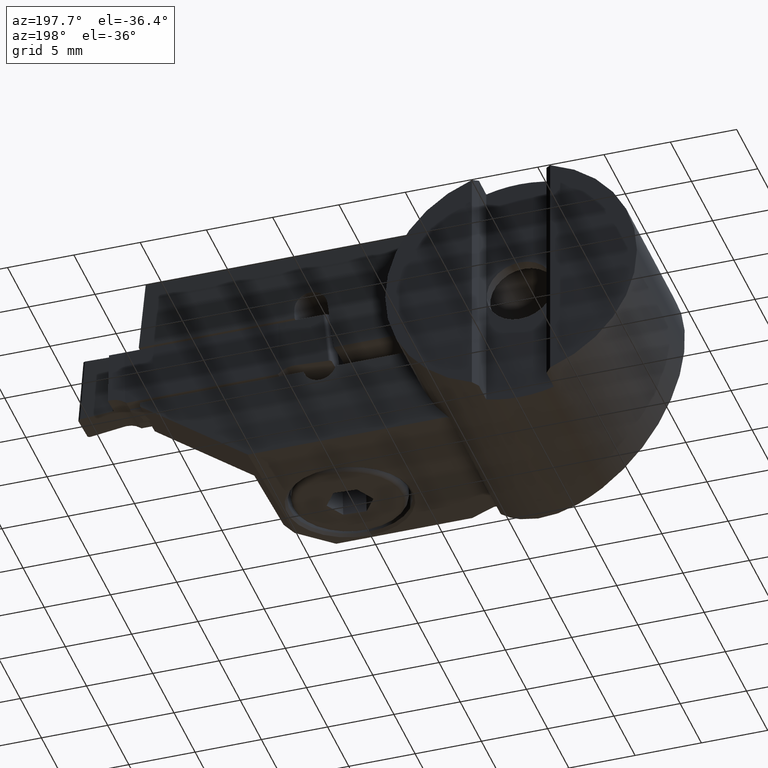
[diagram: clean part render]
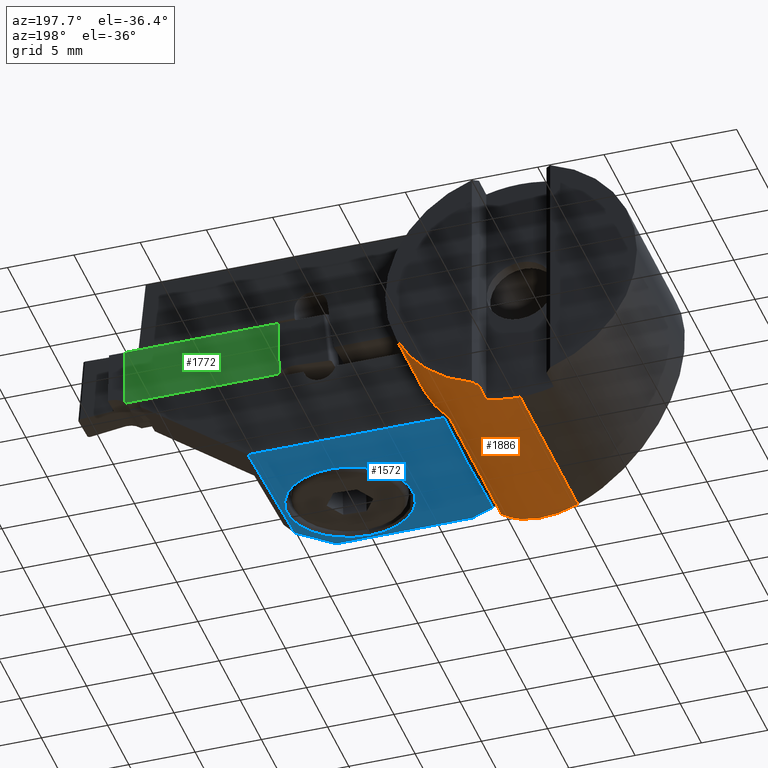
[diagram: same view with three faces highlighted in distinct colors, each labeled with its STEP entity id]
A machine part, auxiliary view with three faces highlighted in distinct colors.
Their STEP definitions:

[orange] entity #1886 — the highlighted cylindrical surface (partial cylindrical patch) has radius 9.5 mm, axis along (-0, 1, -0).
#774=EDGE_CURVE('NONE',#1198,#1756,#2194,.F.);
#866=VERTEX_POINT('NONE',#2297);
#902=EDGE_CURVE('NONE',#1232,#1576,#2335,.T.);
#1032=VERTEX_POINT('NONE',#2474);
#1058=EDGE_CURVE('NONE',#1576,#1346,#2501,.F.);
#1162=EDGE_CURVE('NONE',#1776,#1630,#2618,.F.);
#1186=EDGE_CURVE('NONE',#1912,#1732,#2642,.T.);
#1198=VERTEX_POINT('NONE',#2654);
#1232=VERTEX_POINT('NONE',#2695);
#1234=EDGE_CURVE('NONE',#1626,#1032,#2697,.F.);
#1322=EDGE_CURVE('NONE',#1346,#866,#2795,.F.);
#1332=EDGE_CURVE('NONE',#1732,#1566,#2805,.T.);
#1346=VERTEX_POINT('NONE',#2820);
#1480=EDGE_CURVE('NONE',#1566,#1232,#2966,.F.);
#1566=VERTEX_POINT('NONE',#3060);
#1576=VERTEX_POINT('NONE',#3074);
#1578=EDGE_CURVE('NONE',#866,#1198,#3076,.F.);
#1626=VERTEX_POINT('NONE',#3127);
#1630=VERTEX_POINT('NONE',#3131);
#1732=VERTEX_POINT('NONE',#3246);
#1756=VERTEX_POINT('NONE',#3272);
#1776=VERTEX_POINT('NONE',#3294);
#1844=EDGE_CURVE('NONE',#1756,#1776,#3370,.F.);
#1886=ADVANCED_FACE('NONE',(#3416),#3417,.T.);
#1912=VERTEX_POINT('NONE',#3447);
#1938=EDGE_CURVE('NONE',#1032,#1958,#3474,.T.);
#1954=EDGE_CURVE('NONE',#1630,#1958,#3494,.F.);
#1958=VERTEX_POINT('NONE',#3498);
#2100=EDGE_CURVE('NONE',#1912,#1626,#3655,.F.);
#2194=CIRCLE('',#3803,9.5);
#2297=CARTESIAN_POINT('',(2.55,-0.399999999999999,-9.15136601825104));
#2335=LINE('',#4069,#4070);
#2474=CARTESIAN_POINT('',(0.0,-5.61117100890395,9.5));
#2501=CIRCLE('',#4323,9.5);
#2618=LINE('',#4545,#4546);
#2642=B_SPLINE_CURVE_WITH_KNOTS('',3,(#4594,#4595,#4596,#4597),.UNSPECIFIED.,.F.,.F.,(4,4),(0.000131653308818553,0.000150416080858833),.UNSPECIFIED.);
#2654=CARTESIAN_POINT('',(2.95,0.0,-9.03036544111034));
#2695=CARTESIAN_POINT('',(1.16337603613126E-015,-15.7900772475275,-9.5));
#2697=ELLIPSE('',#4703,9.52319803177113,9.5);
#2795=LINE('',#4878,#4879);
#2805=LINE('',#4892,#4893);
#2820=CARTESIAN_POINT('',(2.55,-2.15,-9.15136601825104));
#2966=ELLIPSE('',#5210,10.4820902301437,9.5);
#3060=CARTESIAN_POINT('',(6.754823672766,-18.939903255625,-6.67999679265193));
#3074=CARTESIAN_POINT('',(1.16337603613126E-015,-2.15,-9.5));
#3076=ELLIPSE('',#5448,13.4350288425444,9.5);
#3127=CARTESIAN_POINT('',(9.5,-6.27547572236723,0.0));
#3131=CARTESIAN_POINT('',(2.55,-2.15,9.15136601825105));
#3246=CARTESIAN_POINT('',(6.754823672766,-6.72390522656279,-6.67999679265193));
#3272=CARTESIAN_POINT('',(2.95,0.0,9.03036544111034));
#3294=CARTESIAN_POINT('',(2.55,-0.399999999999999,9.15136601825105));
#3370=ELLIPSE('',#6024,13.4350288425444,9.5);
#3416=FACE_OUTER_BOUND('',#6107,.T.);
#3417=CYLINDRICAL_SURFACE('',#6108,9.5);
#3447=CARTESIAN_POINT('',(6.75686343687371,-6.74244232587475,-6.67793354979213));
#3474=LINE('',#6247,#6248);
#3494=CIRCLE('',#6272,9.5);
#3498=CARTESIAN_POINT('',(0.0,-2.15,9.5));
#3655=ELLIPSE('',#6520,9.52319803177113,9.5);
#3803=AXIS2_PLACEMENT_3D('',#6598,#6599,#6600);
#4069=CARTESIAN_POINT('',(1.16337603613126E-015,-20.22,-9.5));
#4070=VECTOR('',#6749,1000.0);
#4323=AXIS2_PLACEMENT_3D('',#6890,#6891,#6892);
#4545=CARTESIAN_POINT('',(2.55,-20.22,9.15136601825105));
#4546=VECTOR('',#7038,1.0);
#4594=CARTESIAN_POINT('',(6.75686343687371,-6.74244232587475,-6.67793354979213));
#4595=CARTESIAN_POINT('',(6.75618057639941,-6.73626396890599,-6.67862448039943));
#4596=CARTESIAN_POINT('',(6.75550217684964,-6.73008459773371,-6.67931068821379));
#4597=CARTESIAN_POINT('',(6.754823672766,-6.72390522656279,-6.67999679265193));
#4703=AXIS2_PLACEMENT_3D('',#7112,#7113,#7114);
#4878=CARTESIAN_POINT('',(2.55,-20.22,-9.15136601825105));
#4879=VECTOR('',#7219,1.0);
#4892=CARTESIAN_POINT('',(6.75482367276599,-20.22,-6.67999679265193));
#4893=VECTOR('',#7226,1.0);
#5210=AXIS2_PLACEMENT_3D('',#7390,#7391,#7392);
#5448=AXIS2_PLACEMENT_3D('',#7516,#7517,#7518);
#6024=AXIS2_PLACEMENT_3D('',#7824,#7825,#7826);
#6107=EDGE_LOOP('',(#7870,#7871,#7872,#7873,#7874,#7875,#7876,#7877,#7878,#7879,#7880,#7881,#7882,#7883));
#6108=AXIS2_PLACEMENT_3D('',#7884,#7885,#7886);
#6247=CARTESIAN_POINT('',(0.0,-20.22,9.5));
#6248=VECTOR('',#7944,1000.0);
#6272=AXIS2_PLACEMENT_3D('',#7983,#7984,#7985);
#6520=AXIS2_PLACEMENT_3D('',#8149,#8150,#8151);
#6598=CARTESIAN_POINT('',(0.0,0.0,0.0));
#6599=DIRECTION('',(-0.0,1.0,0.0));
#6600=DIRECTION('',(0.0,0.0,1.0));
#6749=DIRECTION('',(0.0,1.0,0.0));
#6890=CARTESIAN_POINT('',(0.0,-2.15,0.0));
#6891=DIRECTION('',(-0.0,1.0,0.0));
#6892=DIRECTION('',(0.0,0.0,1.0));
#7038=DIRECTION('',(0.0,1.0,0.0));
#7112=CARTESIAN_POINT('',(0.0,-6.27547572236723,0.0));
#7113=DIRECTION('',(0.0,0.997564050259825,-0.0697564737441181));
#7114=DIRECTION('',(0.0,0.0697564737441181,0.997564050259825));
#7219=DIRECTION('',(0.0,-1.0,0.0));
#7226=DIRECTION('',(0.0,-1.0,0.0));
#7390=CARTESIAN_POINT('',(0.0,-15.7900772475275,0.0));
#7391=DIRECTION('',(-0.422618261740701,-0.906307787036649,0.0));
#7392=DIRECTION('',(-0.906307787036649,0.422618261740701,-0.0));
#7516=CARTESIAN_POINT('',(0.0,-2.94999999999999,0.0));
#7517=DIRECTION('',(-0.707106781186546,0.707106781186549,0.0));
#7518=DIRECTION('',(-0.707106781186549,-0.707106781186546,0.0));
#7824=CARTESIAN_POINT('',(0.0,-2.94999999999999,0.0));
#7825=DIRECTION('',(-0.707106781186546,0.707106781186549,0.0));
#7826=DIRECTION('',(-0.707106781186549,-0.707106781186546,0.0));
#7870=ORIENTED_EDGE('',*,*,#1480,.T.);
#7871=ORIENTED_EDGE('',*,*,#902,.T.);
#7872=ORIENTED_EDGE('',*,*,#1058,.T.);
#7873=ORIENTED_EDGE('',*,*,#1322,.T.);
#7874=ORIENTED_EDGE('',*,*,#1578,.T.);
#7875=ORIENTED_EDGE('',*,*,#774,.T.);
#7876=ORIENTED_EDGE('',*,*,#1844,.T.);
#7877=ORIENTED_EDGE('',*,*,#1162,.T.);
#7878=ORIENTED_EDGE('',*,*,#1954,.T.);
#7879=ORIENTED_EDGE('',*,*,#1938,.F.);
#7880=ORIENTED_EDGE('',*,*,#1234,.F.);
#7881=ORIENTED_EDGE('',*,*,#2100,.F.);
#7882=ORIENTED_EDGE('',*,*,#1186,.T.);
#7883=ORIENTED_EDGE('',*,*,#1332,.T.);
#7884=CARTESIAN_POINT('',(0.0,-20.22,0.0));
#7885=DIRECTION('',(-0.0,1.0,-0.0));
#7886=DIRECTION('',(0.0,0.0,1.0));
#7944=DIRECTION('',(0.0,1.0,0.0));
#7983=CARTESIAN_POINT('',(0.0,-2.15,0.0));
#7984=DIRECTION('',(-0.0,1.0,0.0));
#7985=DIRECTION('',(0.0,0.0,1.0));
#8149=CARTESIAN_POINT('',(0.0,-6.27547572236723,0.0));
#8150=DIRECTION('',(0.0,0.997564050259825,-0.0697564737441181));
#8151=DIRECTION('',(0.0,0.0697564737441181,0.997564050259825));

[blue] entity #1572 — the highlighted planar face has unit normal (0, 0.0698, 0.9976).
#744=EDGE_CURVE('NONE',#1430,#782,#2161,.F.);
#782=VERTEX_POINT('NONE',#2202);
#884=VERTEX_POINT('NONE',#2317);
#1132=VERTEX_POINT('NONE',#2586);
#1300=EDGE_CURVE('NONE',#2126,#782,#2771,.F.);
#1348=VERTEX_POINT('NONE',#2822);
#1414=EDGE_CURVE('NONE',#1132,#884,#2895,.F.);
#1430=VERTEX_POINT('NONE',#2913);
#1444=VERTEX_POINT('NONE',#2928);
#1448=EDGE_CURVE('NONE',#1444,#1348,#2932,.T.);
#1572=ADVANCED_FACE('NONE',(#3068,#3069),#3070,.F.);
#1636=EDGE_CURVE('NONE',#1444,#1818,#3138,.T.);
#1760=EDGE_CURVE('NONE',#1430,#1864,#3276,.T.);
#1784=EDGE_CURVE('NONE',#1818,#1864,#3303,.T.);
#1818=VERTEX_POINT('NONE',#3343);
#1828=EDGE_CURVE('NONE',#1348,#2126,#3353,.F.);
#1864=VERTEX_POINT('NONE',#3391);
#2118=EDGE_CURVE('NONE',#884,#1132,#3675,.T.);
#2126=VERTEX_POINT('NONE',#3684);
#2161=LINE('',#3733,#3734);
#2202=CARTESIAN_POINT('',(22.0,-6.73,-6.5));
#2317=CARTESIAN_POINT('',(17.0,-19.8978454634297,-5.57921454657765));
#2586=CARTESIAN_POINT('',(17.0,-10.5207433909874,-6.23492539977235));
#2771=LINE('',#4836,#4837);
#2822=CARTESIAN_POINT('',(7.52820323027551,-18.7487972026489,-5.65956382822328));
#2895=CIRCLE('',#5066,4.7);
#2913=CARTESIAN_POINT('',(22.0,-17.7801556840435,-5.72729784153547));
#2928=CARTESIAN_POINT('',(7.52820323027551,-19.3005360659522,-5.62098248848715));
#2932=LINE('',#5155,#5156);
#3068=FACE_OUTER_BOUND('',#5428,.T.);
#3069=FACE_BOUND('',#5429,.T.);
#3070=PLANE('',#5430);
#3138=LINE('',#5565,#5566);
#3276=LINE('',#5812,#5813);
#3303=LINE('',#5855,#5856);
#3343=CARTESIAN_POINT('',(9.35923054191773,-20.1543581236619,-5.56127743402447));
#3353=B_SPLINE_CURVE_WITH_KNOTS('',3,(#5977,#5978,#5979,#5980,#5981,#5982,#5983,#5984),.UNSPECIFIED.,.F.,.F.,(4,2,2,4),(0.270583192891111,0.325934125770964,0.38395608384731,0.5),.UNSPECIFIED.);
#3391=CARTESIAN_POINT('',(19.62,-20.1543581236619,-5.56127743402447));
#3675=CIRCLE('',#6547,4.7);
#3684=CARTESIAN_POINT('',(7.18474689009052,-6.73,-6.5));
#3733=CARTESIAN_POINT('',(22.0,-20.6818686224141,-5.52439030658));
#3734=VECTOR('',#6565,1.0);
#4836=CARTESIAN_POINT('',(6.92820323027551,-6.73,-6.5));
#4837=VECTOR('',#7196,1.0);
#5066=AXIS2_PLACEMENT_3D('',#7331,#7332,#7333);
#5155=CARTESIAN_POINT('',(7.52820323027551,-20.1543581236619,-5.56127743402447));
#5156=VECTOR('',#7366,1.0);
#5428=EDGE_LOOP('',(#7504,#7505,#7506,#7507,#7508,#7509,#7510));
#5429=EDGE_LOOP('',(#7511,#7512));
#5430=AXIS2_PLACEMENT_3D('',#7513,#7514,#7515);
#5565=CARTESIAN_POINT('',(8.74057131062959,-19.865872586324,-5.58145030794232));
#5566=VECTOR('',#7581,1.0);
#5812=CARTESIAN_POINT('',(17.9470508075689,-21.8232320959424,-5.44457839760741));
#5813=VECTOR('',#7720,1.0);
#5855=CARTESIAN_POINT('',(6.92820323027551,-20.1543581236619,-5.56127743402447));
#5856=VECTOR('',#7755,1.0);
#5977=CARTESIAN_POINT('',(7.18474689009053,-6.73000000000005,-6.5));
#5978=CARTESIAN_POINT('',(7.23206563409918,-7.41972831949615,-6.45176949751049));
#5979=CARTESIAN_POINT('',(7.27699313783951,-8.19169042879422,-6.39778864826609));
#5980=CARTESIAN_POINT('',(7.36037845263588,-9.92974549041583,-6.27625199882463));
#5981=CARTESIAN_POINT('',(7.39841648708662,-10.9038497947875,-6.20813599031947));
#5982=CARTESIAN_POINT('',(7.49273396711855,-14.0269889598411,-5.98974482525138));
#5983=CARTESIAN_POINT('',(7.5282032302786,-16.3803404933992,-5.82518245512731));
#5984=CARTESIAN_POINT('',(7.52820323027551,-18.7487972026489,-5.65956382822329));
#6547=AXIS2_PLACEMENT_3D('',#8177,#8178,#8179);
#6565=DIRECTION('',(-1.16870999026869E-015,-0.997564050259825,0.0697564737441173));
#7196=DIRECTION('',(-1.0,-0.0,0.0));
#7331=CARTESIAN_POINT('',(17.0,-15.2092944272085,-5.90706997317503));
#7332=DIRECTION('',(0.0,-0.0697564737441173,-0.997564050259825));
#7333=DIRECTION('',(0.0,0.997564050259825,-0.0697564737441173));
#7366=DIRECTION('',(0.0,0.997564050259825,-0.0697564737441153));
#7504=ORIENTED_EDGE('',*,*,#1448,.T.);
#7505=ORIENTED_EDGE('',*,*,#1828,.T.);
#7506=ORIENTED_EDGE('',*,*,#1300,.T.);
#7507=ORIENTED_EDGE('',*,*,#744,.F.);
#7508=ORIENTED_EDGE('',*,*,#1760,.T.);
#7509=ORIENTED_EDGE('',*,*,#1784,.F.);
#7510=ORIENTED_EDGE('',*,*,#1636,.F.);
#7511=ORIENTED_EDGE('',*,*,#1414,.T.);
#7512=ORIENTED_EDGE('',*,*,#2118,.T.);
#7513=CARTESIAN_POINT('',(6.92820323027551,-20.1543581236619,-5.56127743402447));
#7514=DIRECTION('',(0.0,0.0697564737441173,0.997564050259825));
#7515=DIRECTION('',(0.0,0.997564050259825,-0.0697564737441173));
#7581=DIRECTION('',(0.905912288081747,-0.422433837549238,0.0295394515168776));
#7720=DIRECTION('',(-0.707106781186548,-0.705384304606639,0.0493252756161266));
#7755=DIRECTION('',(1.0,0.0,0.0));
#8177=CARTESIAN_POINT('',(17.0,-15.2092944272085,-5.90706997317503));
#8178=DIRECTION('',(0.0,0.0697564737441173,0.997564050259825));
#8179=DIRECTION('',(0.0,0.997564050259825,-0.0697564737441173));

[green] entity #1772 — the highlighted planar face has unit normal (-0, 0.9994, -0.0349).
#786=EDGE_CURVE('NONE',#1226,#1564,#2207,.T.);
#848=EDGE_CURVE('NONE',#2094,#1564,#2276,.T.);
#918=EDGE_CURVE('NONE',#1014,#1856,#2352,.T.);
#1014=VERTEX_POINT('NONE',#2454);
#1060=EDGE_CURVE('NONE',#1014,#1210,#2503,.T.);
#1136=EDGE_CURVE('NONE',#1210,#2094,#2590,.T.);
#1176=EDGE_CURVE('NONE',#1856,#1226,#2632,.T.);
#1210=VERTEX_POINT('NONE',#2670);
#1226=VERTEX_POINT('NONE',#2687);
#1564=VERTEX_POINT('NONE',#3058);
#1772=ADVANCED_FACE('NONE',(#3289),#3290,.T.);
#1856=VERTEX_POINT('NONE',#3382);
#2094=VERTEX_POINT('NONE',#3649);
#2207=(B_SPLINE_CURVE(3,(#3831,#3832,#3833,#3834),.UNSPECIFIED.,.F.,.F.)B_SPLINE_CURVE_WITH_KNOTS((4,4),(3.83982907097372,3.9047296603752),.UNSPECIFIED.)RATIONAL_B_SPLINE_CURVE((1.0,0.999649023591712,0.999649023591712,1.0))BOUNDED_CURVE()REPRESENTATION_ITEM('')GEOMETRIC_REPRESENTATION_ITEM()CURVE());
#2276=LINE('',#3981,#3982);
#2352=LINE('',#4096,#4097);
#2454=CARTESIAN_POINT('',(31.105058715404,-6.08431944708899,4.20214016321892));
#2503=LINE('',#4326,#4327);
#2590=(B_SPLINE_CURVE(3,(#4477,#4478,#4479,#4480),.UNSPECIFIED.,.F.,.F.)B_SPLINE_CURVE_WITH_KNOTS((4,4),(3.83982907097371,3.90472966037518),.UNSPECIFIED.)RATIONAL_B_SPLINE_CURVE((1.0,0.999649023591712,0.999649023591712,1.0))BOUNDED_CURVE()REPRESENTATION_ITEM('')GEOMETRIC_REPRESENTATION_ITEM()CURVE());
#2632=LINE('',#4567,#4568);
#2670=CARTESIAN_POINT('',(31.1012760449018,-6.2357207749087,-0.133426607594715));
#2687=CARTESIAN_POINT('',(19.4911528715899,-6.2357207749087,-0.133426607594714));
#3058=CARTESIAN_POINT('',(19.5699210622893,-6.23818577985207,-0.204015113496726));
#3289=FACE_OUTER_BOUND('',#5829,.T.);
#3290=PLANE('',#5830);
#3382=CARTESIAN_POINT('',(19.4873702010878,-6.08431944708899,4.20214016321892));
#3649=CARTESIAN_POINT('',(31.0225078542025,-6.23818577985207,-0.204015113496725));
#3831=CARTESIAN_POINT('',(19.4911528715899,-6.2357207749087,-0.133426607594714));
#3832=CARTESIAN_POINT('',(19.5181679992167,-6.23651254066719,-0.156099812395671));
#3833=CARTESIAN_POINT('',(19.5444332812775,-6.2373344974691,-0.179637575562584));
#3834=CARTESIAN_POINT('',(19.5699210622893,-6.23818577985207,-0.204015113496726));
#3981=CARTESIAN_POINT('',(19.4912144582459,-6.23818577985207,-0.204015113496726));
#3982=VECTOR('',#6690,1000.0);
#4096=CARTESIAN_POINT('',(38.6989920228909,-6.08431944708898,4.20214016321892));
#4097=VECTOR('',#6762,1000.0);
#4326=CARTESIAN_POINT('',(31.1012144582459,-6.23818577985207,-0.204015113496725));
#4327=VECTOR('',#6893,1000.0);
#4477=CARTESIAN_POINT('',(31.1012760449018,-6.2357207749087,-0.133426607594715));
#4478=CARTESIAN_POINT('',(31.0742609172751,-6.23651254066719,-0.156099812395672));
#4479=CARTESIAN_POINT('',(31.0479956352143,-6.23733449746909,-0.179637575562584));
#4480=CARTESIAN_POINT('',(31.0225078542025,-6.23818577985207,-0.204015113496725));
#4567=CARTESIAN_POINT('',(19.4912144582459,-6.23818577985207,-0.204015113496726));
#4568=VECTOR('',#7042,1000.0);
#5829=EDGE_LOOP('',(#7738,#7739,#7740,#7741,#7742,#7743));
#5830=AXIS2_PLACEMENT_3D('',#7744,#7745,#7746);
#6690=DIRECTION('',(-1.0,-2.8859718710214E-016,-1.64546472060739E-017));
#6762=DIRECTION('',(-1.0,-2.83051916227687E-016,1.37505086542004E-016));
#6893=DIRECTION('',(-0.000871942462032124,-0.0348994834357506,-0.999390447108767));
#7042=DIRECTION('',(0.000871942462032184,-0.0348994834357506,-0.999390447108767));
#7738=ORIENTED_EDGE('',*,*,#786,.F.);
#7739=ORIENTED_EDGE('',*,*,#1176,.F.);
#7740=ORIENTED_EDGE('',*,*,#918,.F.);
#7741=ORIENTED_EDGE('',*,*,#1060,.T.);
#7742=ORIENTED_EDGE('',*,*,#1136,.T.);
#7743=ORIENTED_EDGE('',*,*,#848,.T.);
#7744=CARTESIAN_POINT('',(19.4912144582459,-6.23818577985207,-0.204015113496726));
#7745=DIRECTION('',(-2.87847122587483E-016,0.999390827019095,-0.0348994967025116));
#7746=DIRECTION('',(1.0,5.50075747219309E-016,7.50422092277111E-015));